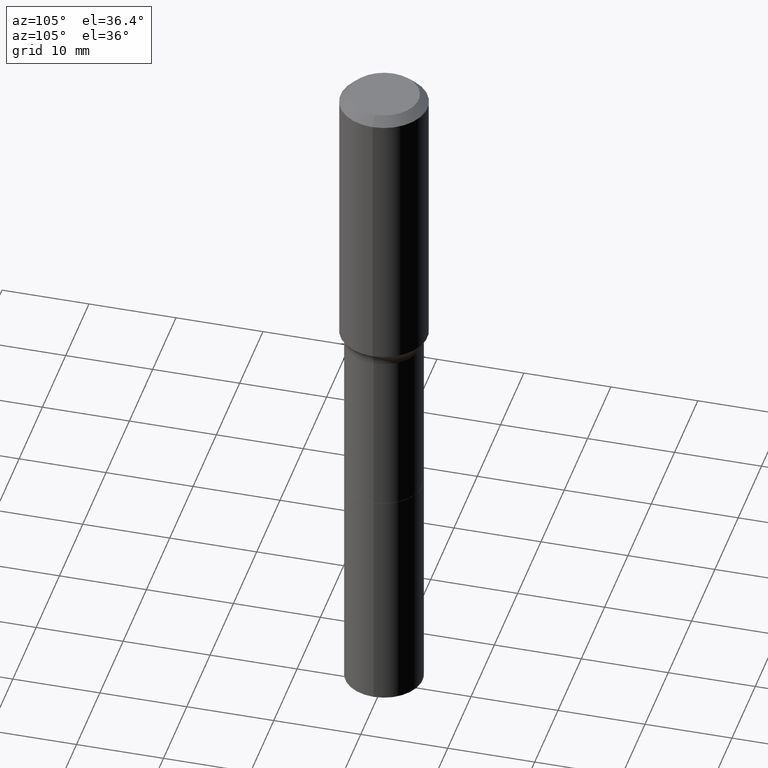
[diagram: clean part render]
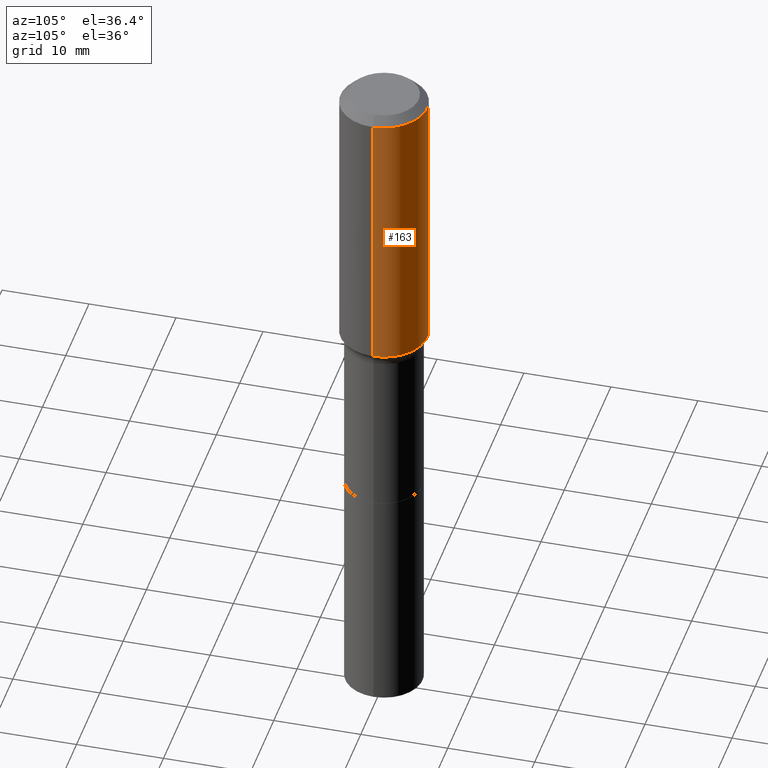
[diagram: same view with one face highlighted and labeled with its STEP entity id]
A machine part, auxiliary view. The second image highlights one B-rep face of the part: STEP entity #163.
In plain terms, the highlighted cylindrical surface (partial cylindrical patch) has radius 5 mm, axis along (-0, 0, 1).
Its self-contained STEP definition (entity closure, byte-faithful):
#1 = DIRECTION ( 'NONE',  ( -2.445468806185136877E-29, 3.491481338843145188E-15, 1.000000000000000000 ) ) ;
#30 = CYLINDRICAL_SURFACE ( 'NONE', #371, 0.1968500000000001082 ) ;
#68 = VECTOR ( 'NONE', #1, 39.37007874015748143 ) ;
#81 = CARTESIAN_POINT ( 'NONE',  ( 9.627810689950955906E-31, -1.374596203102556794E-16, -0.03937000000000030059 ) ) ;
#88 = DIRECTION ( 'NONE',  ( -2.445468806185136597E-29, 3.491481338843145583E-15, 1.000000000000000000 ) ) ;
#89 = ORIENTED_EDGE ( 'NONE', *, *, #485, .F. ) ;
#95 = DIRECTION ( 'NONE',  ( 1.000000000000000000, -6.982962677686266711E-15, 4.876176775795935793E-29 ) ) ;
#115 = CARTESIAN_POINT ( 'NONE',  ( 3.139664963955859804E-29, -4.482609471094445680E-15, -1.283870379378770243 ) ) ;
#130 = ORIENTED_EDGE ( 'NONE', *, *, #442, .T. ) ;
#142 = VECTOR ( 'NONE', #310, 39.37007874015748143 ) ;
#153 = CARTESIAN_POINT ( 'NONE',  ( 0.1968500000000001915, -5.857205674196988866E-15, -1.283870379378770243 ) ) ;
#155 = CARTESIAN_POINT ( 'NONE',  ( 0.1968500000000001082, -1.374596203102542397E-15, 9.598753983154305062E-30 ) ) ;
#163 = ADVANCED_FACE ( 'NONE', ( #386 ), #30, .T. ) ;
#175 = ORIENTED_EDGE ( 'NONE', *, *, #189, .F. ) ;
#189 = EDGE_CURVE ( 'NONE', #403, #358, #507, .T. ) ;
#202 = DIRECTION ( 'NONE',  ( 1.000000000000000000, -6.982962677686266711E-15, 0.000000000000000000 ) ) ;
#229 = AXIS2_PLACEMENT_3D ( 'NONE', #81, #88, #202 ) ;
#232 = DIRECTION ( 'NONE',  ( -2.445468806185136597E-29, 3.491481338843145583E-15, 1.000000000000000000 ) ) ;
#233 = VERTEX_POINT ( 'NONE', #235 ) ;
#235 = CARTESIAN_POINT ( 'NONE',  ( -0.1968500000000000527, -9.113311703585926457E-16, -0.03937000000000030059 ) ) ;
#247 = CARTESIAN_POINT ( 'NONE',  ( 0.1968500000000000527, -1.512055823412797583E-15, -0.03937000000000030059 ) ) ;
#249 = EDGE_LOOP ( 'NONE', ( #130, #454, #89, #175 ) ) ;
#253 = VERTEX_POINT ( 'NONE', #383 ) ;
#277 = CIRCLE ( 'NONE', #229, 0.1968500000000000527 ) ;
#290 = CARTESIAN_POINT ( 'NONE',  ( 0.000000000000000000, 0.000000000000000000, 0.000000000000000000 ) ) ;
#310 = DIRECTION ( 'NONE',  ( -2.445468806185136877E-29, 3.491481338843145188E-15, 1.000000000000000000 ) ) ;
#326 = EDGE_CURVE ( 'NONE', #253, #233, #396, .T. ) ;
#358 = VERTEX_POINT ( 'NONE', #247 ) ;
#371 = AXIS2_PLACEMENT_3D ( 'NONE', #290, #448, #95 ) ;
#383 = CARTESIAN_POINT ( 'NONE',  ( -0.1968500000000001915, -3.083906095750687498E-15, -1.283870379378770243 ) ) ;
#386 = FACE_OUTER_BOUND ( 'NONE', #249, .T. ) ;
#396 = LINE ( 'NONE', #475, #68 ) ;
#400 = CIRCLE ( 'NONE', #430, 0.1968500000000001915 ) ;
#403 = VERTEX_POINT ( 'NONE', #153 ) ;
#430 = AXIS2_PLACEMENT_3D ( 'NONE', #115, #232, #502 ) ;
#442 = EDGE_CURVE ( 'NONE', #403, #253, #400, .T. ) ;
#448 = DIRECTION ( 'NONE',  ( -2.445468806185136597E-29, 3.491481338843145583E-15, 1.000000000000000000 ) ) ;
#454 = ORIENTED_EDGE ( 'NONE', *, *, #326, .T. ) ;
#475 = CARTESIAN_POINT ( 'NONE',  ( -0.1968500000000001082, 1.398703375343757985E-15, -9.682923725166787881E-30 ) ) ;
#485 = EDGE_CURVE ( 'NONE', #358, #233, #277, .T. ) ;
#502 = DIRECTION ( 'NONE',  ( 1.000000000000000000, -6.982962677686266711E-15, 0.000000000000000000 ) ) ;
#507 = LINE ( 'NONE', #155, #142 ) ;